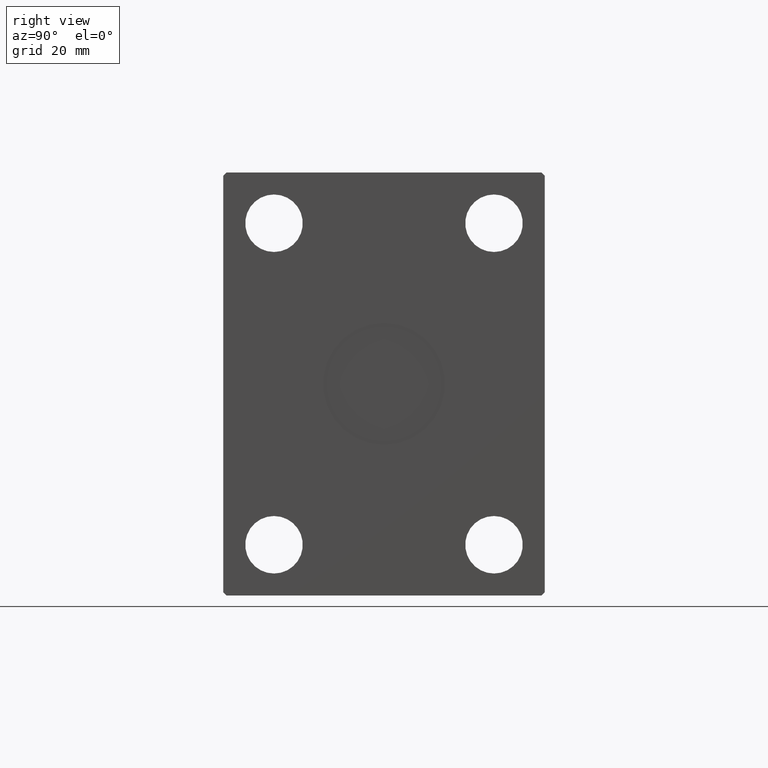
[diagram: clean part render]
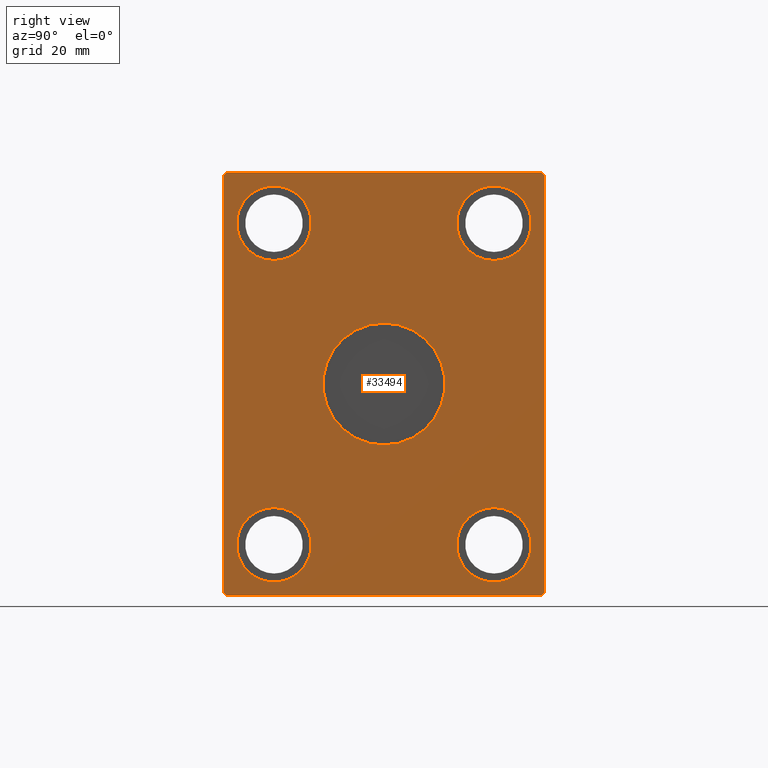
[diagram: same view with one face highlighted and labeled with its STEP entity id]
A machine part, right view. The second image highlights one B-rep face of the part: STEP entity #33494.
In plain terms, the highlighted planar face has unit normal (1, 0, 0).
Its self-contained STEP definition (entity closure, byte-faithful):
#293 = DIRECTION ( 'NONE',  ( 0.000000000000000000, 0.7071067811865451302, -0.7071067811865500152 ) ) ;
#315 = DIRECTION ( 'NONE',  ( 0.000000000000000000, 0.000000000000000000, -1.000000000000000000 ) ) ;
#512 = VERTEX_POINT ( 'NONE', #27619 ) ;
#550 = CARTESIAN_POINT ( 'NONE',  ( 121.0000000000000000, 32.50000000000000000, -47.50000000000000000 ) ) ;
#586 = CARTESIAN_POINT ( 'NONE',  ( 121.0000000000000000, 46.50000000000000000, 62.49999999999998579 ) ) ;
#790 = CARTESIAN_POINT ( 'NONE',  ( 121.0000000000000000, 46.50000000000000000, 62.49999999999998579 ) ) ;
#1250 = EDGE_CURVE ( 'NONE', #512, #30244, #6472, .T. ) ;
#1452 = AXIS2_PLACEMENT_3D ( 'NONE', #40528, #19399, #25911 ) ;
#1566 = CARTESIAN_POINT ( 'NONE',  ( 121.0000000000000000, -32.50000000000000000, 47.50000000000000000 ) ) ;
#1602 = CIRCLE ( 'NONE', #41110, 18.00000000000000000 ) ;
#1660 = VERTEX_POINT ( 'NONE', #38631 ) ;
#1786 = DIRECTION ( 'NONE',  ( 0.000000000000000000, 0.000000000000000000, 1.000000000000000000 ) ) ;
#1809 = EDGE_CURVE ( 'NONE', #18173, #2864, #14980, .T. ) ;
#1957 = ORIENTED_EDGE ( 'NONE', *, *, #31815, .T. ) ;
#1975 = CARTESIAN_POINT ( 'NONE',  ( 121.0000000000000000, -47.50000000000001421, 61.49999999999997868 ) ) ;
#2198 = CARTESIAN_POINT ( 'NONE',  ( 121.0000000000000000, 47.50000000000000000, 61.49999999999998579 ) ) ;
#2354 = VERTEX_POINT ( 'NONE', #1975 ) ;
#2469 = VERTEX_POINT ( 'NONE', #30292 ) ;
#2484 = VERTEX_POINT ( 'NONE', #38596 ) ;
#2864 = VERTEX_POINT ( 'NONE', #10656 ) ;
#3386 = EDGE_CURVE ( 'NONE', #25808, #8912, #32332, .T. ) ;
#4108 = ORIENTED_EDGE ( 'NONE', *, *, #34305, .F. ) ;
#4279 = EDGE_LOOP ( 'NONE', ( #26016, #42307 ) ) ;
#4296 = FACE_BOUND ( 'NONE', #10354, .T. ) ;
#4680 = CARTESIAN_POINT ( 'NONE',  ( 121.0000000000000000, 47.50000000000000000, 61.49999999999998579 ) ) ;
#4962 = AXIS2_PLACEMENT_3D ( 'NONE', #41666, #10849, #24776 ) ;
#5519 = EDGE_LOOP ( 'NONE', ( #1957, #36019 ) ) ;
#5595 = VECTOR ( 'NONE', #10548, 999.9999999999998863 ) ;
#5913 = CARTESIAN_POINT ( 'NONE',  ( 121.0000000000000000, 0.000000000000000000, 0.000000000000000000 ) ) ;
#6463 = ORIENTED_EDGE ( 'NONE', *, *, #42737, .T. ) ;
#6472 = CIRCLE ( 'NONE', #1452, 10.99999999999999645 ) ;
#6576 = FACE_OUTER_BOUND ( 'NONE', #40272, .T. ) ;
#6586 = DIRECTION ( 'NONE',  ( -1.000000000000000000, -0.000000000000000000, -0.000000000000000000 ) ) ;
#6797 = VERTEX_POINT ( 'NONE', #4680 ) ;
#6876 = EDGE_CURVE ( 'NONE', #6797, #18173, #43352, .T. ) ;
#6892 = AXIS2_PLACEMENT_3D ( 'NONE', #38356, #27777, #41505 ) ;
#7294 = DIRECTION ( 'NONE',  ( 1.000000000000000000, -0.000000000000000000, -0.000000000000000000 ) ) ;
#7647 = DIRECTION ( 'NONE',  ( 1.000000000000000000, -0.000000000000000000, -0.000000000000000000 ) ) ;
#7661 = CIRCLE ( 'NONE', #36404, 10.99999999999999645 ) ;
#7920 = EDGE_LOOP ( 'NONE', ( #41125, #16267 ) ) ;
#8912 = VERTEX_POINT ( 'NONE', #20488 ) ;
#8959 = AXIS2_PLACEMENT_3D ( 'NONE', #17318, #7647, #28094 ) ;
#9042 = LINE ( 'NONE', #25056, #20685 ) ;
#9289 = EDGE_CURVE ( 'NONE', #8912, #25808, #1602, .T. ) ;
#9954 = CARTESIAN_POINT ( 'NONE',  ( 121.0000000000000000, -32.50000000000000000, 47.50000000000000000 ) ) ;
#10042 = ORIENTED_EDGE ( 'NONE', *, *, #42927, .T. ) ;
#10167 = VERTEX_POINT ( 'NONE', #19303 ) ;
#10354 = EDGE_LOOP ( 'NONE', ( #4108, #13799 ) ) ;
#10548 = DIRECTION ( 'NONE',  ( 0.000000000000000000, 0.7071067811865574537, 0.7071067811865376918 ) ) ;
#10656 = CARTESIAN_POINT ( 'NONE',  ( 121.0000000000000000, -46.50000000000001421, 62.49999999999997868 ) ) ;
#10777 = CARTESIAN_POINT ( 'NONE',  ( 121.0000000000000000, 46.50000000000000000, -62.50000000000000000 ) ) ;
#10849 = DIRECTION ( 'NONE',  ( -1.000000000000000000, -0.000000000000000000, -0.000000000000000000 ) ) ;
#11405 = VECTOR ( 'NONE', #293, 1000.000000000000114 ) ;
#11611 = CARTESIAN_POINT ( 'NONE',  ( 121.0000000000000000, 47.50000000000001421, -61.50000000000001421 ) ) ;
#11625 = VECTOR ( 'NONE', #30286, 1000.000000000000114 ) ;
#11652 = ORIENTED_EDGE ( 'NONE', *, *, #38592, .T. ) ;
#12052 = LINE ( 'NONE', #11611, #37975 ) ;
#12673 = VECTOR ( 'NONE', #26524, 1000.000000000000000 ) ;
#12917 = VECTOR ( 'NONE', #35225, 1000.000000000000000 ) ;
#13594 = DIRECTION ( 'NONE',  ( 0.000000000000000000, 0.000000000000000000, -1.000000000000000000 ) ) ;
#13601 = AXIS2_PLACEMENT_3D ( 'NONE', #17192, #7294, #315 ) ;
#13799 = ORIENTED_EDGE ( 'NONE', *, *, #15278, .F. ) ;
#14232 = CARTESIAN_POINT ( 'NONE',  ( 121.0000000000000000, -32.50000000000000000, -36.50000000000000711 ) ) ;
#14278 = DIRECTION ( 'NONE',  ( -1.000000000000000000, -0.000000000000000000, -0.000000000000000000 ) ) ;
#14980 = LINE ( 'NONE', #586, #12917 ) ;
#15278 = EDGE_CURVE ( 'NONE', #43950, #30680, #26178, .T. ) ;
#16267 = ORIENTED_EDGE ( 'NONE', *, *, #3386, .F. ) ;
#17192 = CARTESIAN_POINT ( 'NONE',  ( 121.0000000000000000, -32.50000000000000000, -47.50000000000000000 ) ) ;
#17318 = CARTESIAN_POINT ( 'NONE',  ( 121.0000000000000000, -32.50000000000000000, -47.50000000000000000 ) ) ;
#18173 = VERTEX_POINT ( 'NONE', #790 ) ;
#19303 = CARTESIAN_POINT ( 'NONE',  ( 121.0000000000000000, -47.49999999999999289, -61.50000000000001421 ) ) ;
#19379 = CIRCLE ( 'NONE', #43067, 10.99999999999999645 ) ;
#19399 = DIRECTION ( 'NONE',  ( 1.000000000000000000, -0.000000000000000000, -0.000000000000000000 ) ) ;
#20291 = DIRECTION ( 'NONE',  ( 0.000000000000000000, 0.000000000000000000, 1.000000000000000000 ) ) ;
#20362 = DIRECTION ( 'NONE',  ( 0.000000000000000000, -0.7071067811865474617, -0.7071067811865474617 ) ) ;
#20488 = CARTESIAN_POINT ( 'NONE',  ( 121.0000000000000000, 0.000000000000000000, -18.00000000000000000 ) ) ;
#20619 = VECTOR ( 'NONE', #20362, 1000.000000000000114 ) ;
#20685 = VECTOR ( 'NONE', #42163, 1000.000000000000000 ) ;
#22363 = CARTESIAN_POINT ( 'NONE',  ( 121.0000000000000000, -32.50000000000000000, -58.50000000000000000 ) ) ;
#23290 = EDGE_CURVE ( 'NONE', #30244, #512, #25562, .T. ) ;
#23650 = FACE_BOUND ( 'NONE', #34833, .T. ) ;
#23970 = EDGE_CURVE ( 'NONE', #2354, #10167, #26085, .T. ) ;
#24165 = LINE ( 'NONE', #43764, #20619 ) ;
#24182 = ORIENTED_EDGE ( 'NONE', *, *, #32613, .T. ) ;
#24254 = AXIS2_PLACEMENT_3D ( 'NONE', #38699, #31053, #31494 ) ;
#24420 = AXIS2_PLACEMENT_3D ( 'NONE', #5913, #30605, #34212 ) ;
#24776 = DIRECTION ( 'NONE',  ( 0.000000000000000000, 0.000000000000000000, 1.000000000000000000 ) ) ;
#24964 = FACE_BOUND ( 'NONE', #4279, .T. ) ;
#25056 = CARTESIAN_POINT ( 'NONE',  ( 121.0000000000000000, -46.50000000000000000, -62.50000000000001421 ) ) ;
#25075 = VERTEX_POINT ( 'NONE', #36287 ) ;
#25542 = DIRECTION ( 'NONE',  ( 0.000000000000000000, -1.128275431529630729E-16, 1.000000000000000000 ) ) ;
#25562 = CIRCLE ( 'NONE', #6892, 10.99999999999999645 ) ;
#25808 = VERTEX_POINT ( 'NONE', #34451 ) ;
#25911 = DIRECTION ( 'NONE',  ( 0.000000000000000000, 0.000000000000000000, -1.000000000000000000 ) ) ;
#26016 = ORIENTED_EDGE ( 'NONE', *, *, #1250, .F. ) ;
#26085 = LINE ( 'NONE', #26736, #12673 ) ;
#26178 = CIRCLE ( 'NONE', #8959, 10.99999999999999645 ) ;
#26382 = EDGE_CURVE ( 'NONE', #2469, #32232, #7661, .T. ) ;
#26524 = DIRECTION ( 'NONE',  ( 0.000000000000000000, 1.692413147294445970E-16, -1.000000000000000000 ) ) ;
#26736 = CARTESIAN_POINT ( 'NONE',  ( 121.0000000000000000, -47.50000000000001421, 61.49999999999997868 ) ) ;
#27070 = CARTESIAN_POINT ( 'NONE',  ( 121.0000000000000000, 0.000000000000000000, 0.000000000000000000 ) ) ;
#27415 = EDGE_CURVE ( 'NONE', #2864, #2354, #24165, .T. ) ;
#27619 = CARTESIAN_POINT ( 'NONE',  ( 121.0000000000000000, 32.50000000000000000, 36.50000000000000711 ) ) ;
#27777 = DIRECTION ( 'NONE',  ( 1.000000000000000000, -0.000000000000000000, -0.000000000000000000 ) ) ;
#27782 = ORIENTED_EDGE ( 'NONE', *, *, #35999, .T. ) ;
#27870 = AXIS2_PLACEMENT_3D ( 'NONE', #1566, #39346, #1786 ) ;
#27978 = DIRECTION ( 'NONE',  ( 0.000000000000000000, 0.000000000000000000, 1.000000000000000000 ) ) ;
#28094 = DIRECTION ( 'NONE',  ( 0.000000000000000000, 0.000000000000000000, -1.000000000000000000 ) ) ;
#28585 = ORIENTED_EDGE ( 'NONE', *, *, #41127, .T. ) ;
#30244 = VERTEX_POINT ( 'NONE', #35299 ) ;
#30286 = DIRECTION ( 'NONE',  ( 0.000000000000000000, -0.7071067811865474617, 0.7071067811865474617 ) ) ;
#30292 = CARTESIAN_POINT ( 'NONE',  ( 121.0000000000000000, 32.50000000000000000, -36.50000000000000711 ) ) ;
#30605 = DIRECTION ( 'NONE',  ( 1.000000000000000000, 0.000000000000000000, 0.000000000000000000 ) ) ;
#30680 = VERTEX_POINT ( 'NONE', #22363 ) ;
#30834 = PLANE ( 'NONE',  #24254 ) ;
#31053 = DIRECTION ( 'NONE',  ( 1.000000000000000000, 0.000000000000000000, 0.000000000000000000 ) ) ;
#31095 = LINE ( 'NONE', #31539, #11405 ) ;
#31371 = VERTEX_POINT ( 'NONE', #37467 ) ;
#31445 = CARTESIAN_POINT ( 'NONE',  ( 121.0000000000000000, -32.50000000000000000, 36.50000000000000711 ) ) ;
#31494 = DIRECTION ( 'NONE',  ( 0.000000000000000000, 0.000000000000000000, -1.000000000000000000 ) ) ;
#31539 = CARTESIAN_POINT ( 'NONE',  ( 121.0000000000000000, -47.49999999999999289, -61.50000000000001421 ) ) ;
#31644 = ORIENTED_EDGE ( 'NONE', *, *, #23970, .T. ) ;
#31815 = EDGE_CURVE ( 'NONE', #32232, #2469, #32206, .T. ) ;
#32206 = CIRCLE ( 'NONE', #4962, 10.99999999999999645 ) ;
#32232 = VERTEX_POINT ( 'NONE', #42057 ) ;
#32332 = CIRCLE ( 'NONE', #24420, 18.00000000000000000 ) ;
#32613 = EDGE_CURVE ( 'NONE', #10167, #25075, #31095, .T. ) ;
#32989 = CIRCLE ( 'NONE', #13601, 10.99999999999999645 ) ;
#33494 = ADVANCED_FACE ( 'NONE', ( #40752, #23650, #37382, #6576, #4296, #24964 ), #30834, .T. ) ;
#34212 = DIRECTION ( 'NONE',  ( 0.000000000000000000, 0.000000000000000000, -1.000000000000000000 ) ) ;
#34305 = EDGE_CURVE ( 'NONE', #30680, #43950, #32989, .T. ) ;
#34451 = CARTESIAN_POINT ( 'NONE',  ( 121.0000000000000000, 2.204364238465235428E-15, 18.00000000000000000 ) ) ;
#34550 = VERTEX_POINT ( 'NONE', #31445 ) ;
#34833 = EDGE_LOOP ( 'NONE', ( #11652, #10042 ) ) ;
#35225 = DIRECTION ( 'NONE',  ( 0.000000000000000000, -1.000000000000000000, -7.461176240760460157E-17 ) ) ;
#35299 = CARTESIAN_POINT ( 'NONE',  ( 121.0000000000000000, 32.50000000000000000, 58.50000000000000000 ) ) ;
#35999 = EDGE_CURVE ( 'NONE', #31371, #6797, #12052, .T. ) ;
#36019 = ORIENTED_EDGE ( 'NONE', *, *, #26382, .T. ) ;
#36287 = CARTESIAN_POINT ( 'NONE',  ( 121.0000000000000000, -46.50000000000000000, -62.50000000000001421 ) ) ;
#36404 = AXIS2_PLACEMENT_3D ( 'NONE', #550, #14278, #27978 ) ;
#37382 = FACE_BOUND ( 'NONE', #5519, .T. ) ;
#37467 = CARTESIAN_POINT ( 'NONE',  ( 121.0000000000000000, 47.50000000000001421, -61.50000000000001421 ) ) ;
#37769 = LINE ( 'NONE', #10777, #5595 ) ;
#37937 = CIRCLE ( 'NONE', #27870, 10.99999999999999645 ) ;
#37975 = VECTOR ( 'NONE', #25542, 1000.000000000000000 ) ;
#38356 = CARTESIAN_POINT ( 'NONE',  ( 121.0000000000000000, 32.50000000000000000, 47.50000000000000000 ) ) ;
#38592 = EDGE_CURVE ( 'NONE', #34550, #2484, #19379, .T. ) ;
#38596 = CARTESIAN_POINT ( 'NONE',  ( 121.0000000000000000, -32.50000000000000000, 58.50000000000000000 ) ) ;
#38631 = CARTESIAN_POINT ( 'NONE',  ( 121.0000000000000000, 46.50000000000000000, -62.50000000000000000 ) ) ;
#38699 = CARTESIAN_POINT ( 'NONE',  ( 121.0000000000000000, 0.000000000000000000, 0.000000000000000000 ) ) ;
#39346 = DIRECTION ( 'NONE',  ( -1.000000000000000000, -0.000000000000000000, -0.000000000000000000 ) ) ;
#40272 = EDGE_LOOP ( 'NONE', ( #42683, #40554, #44065, #31644, #24182, #6463, #28585, #27782 ) ) ;
#40377 = DIRECTION ( 'NONE',  ( 1.000000000000000000, 0.000000000000000000, 0.000000000000000000 ) ) ;
#40528 = CARTESIAN_POINT ( 'NONE',  ( 121.0000000000000000, 32.50000000000000000, 47.50000000000000000 ) ) ;
#40554 = ORIENTED_EDGE ( 'NONE', *, *, #1809, .T. ) ;
#40752 = FACE_BOUND ( 'NONE', #7920, .T. ) ;
#41110 = AXIS2_PLACEMENT_3D ( 'NONE', #27070, #40377, #13594 ) ;
#41125 = ORIENTED_EDGE ( 'NONE', *, *, #9289, .F. ) ;
#41127 = EDGE_CURVE ( 'NONE', #1660, #31371, #37769, .T. ) ;
#41505 = DIRECTION ( 'NONE',  ( 0.000000000000000000, 0.000000000000000000, -1.000000000000000000 ) ) ;
#41666 = CARTESIAN_POINT ( 'NONE',  ( 121.0000000000000000, 32.50000000000000000, -47.50000000000000000 ) ) ;
#42057 = CARTESIAN_POINT ( 'NONE',  ( 121.0000000000000000, 32.50000000000000000, -58.50000000000000000 ) ) ;
#42163 = DIRECTION ( 'NONE',  ( 0.000000000000000000, 1.000000000000000000, 1.492235248152092278E-16 ) ) ;
#42307 = ORIENTED_EDGE ( 'NONE', *, *, #23290, .F. ) ;
#42683 = ORIENTED_EDGE ( 'NONE', *, *, #6876, .T. ) ;
#42737 = EDGE_CURVE ( 'NONE', #25075, #1660, #9042, .T. ) ;
#42927 = EDGE_CURVE ( 'NONE', #2484, #34550, #37937, .T. ) ;
#43067 = AXIS2_PLACEMENT_3D ( 'NONE', #9954, #6586, #20291 ) ;
#43352 = LINE ( 'NONE', #2198, #11625 ) ;
#43764 = CARTESIAN_POINT ( 'NONE',  ( 121.0000000000000000, -46.50000000000001421, 62.49999999999997868 ) ) ;
#43950 = VERTEX_POINT ( 'NONE', #14232 ) ;
#44065 = ORIENTED_EDGE ( 'NONE', *, *, #27415, .T. ) ;